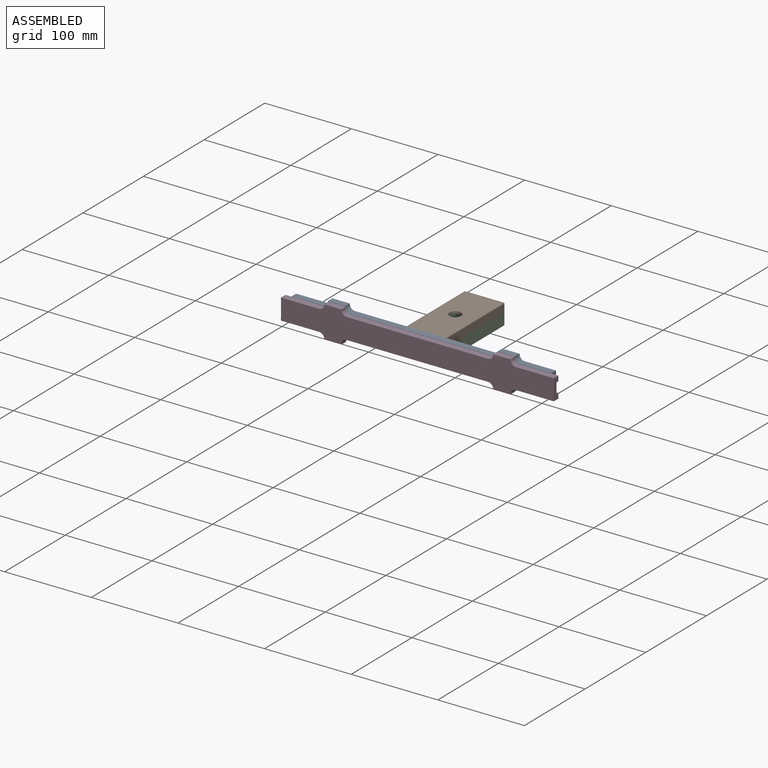
[diagram: assembled view]
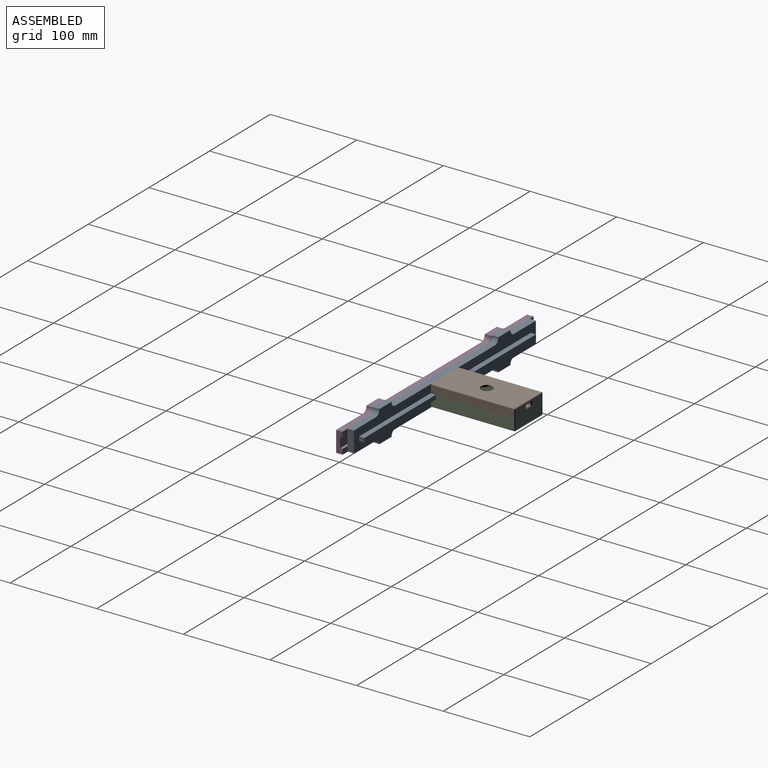
[diagram: assembled view, second angle]
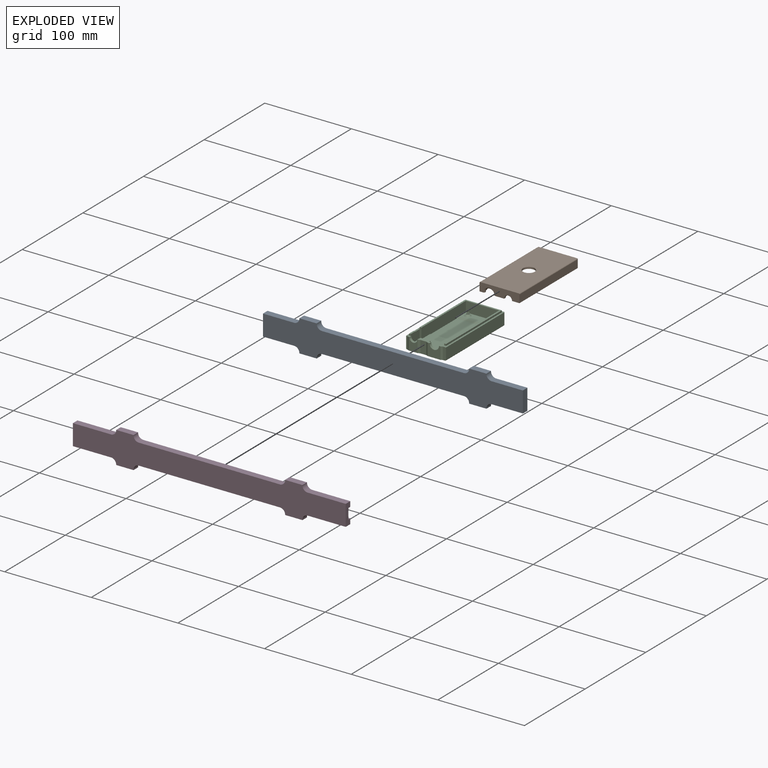
[diagram: exploded view]
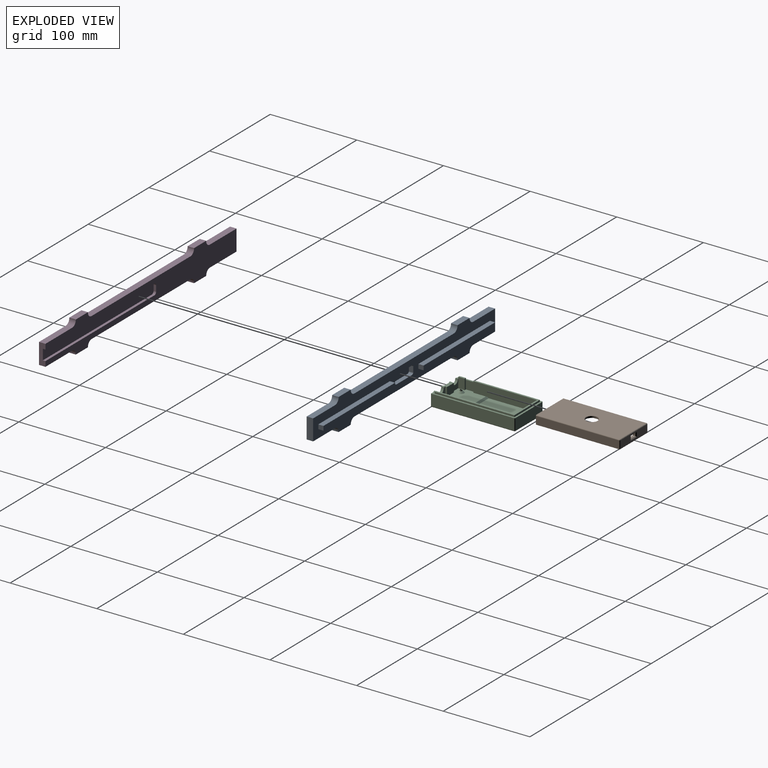
[diagram: exploded view, second angle]
ASSEMBLY  parts=4 mates=3
PART A: 49 faces, bbox 300x36.6x13.5 mm
  f0: plane 300x36.6mm, normal (0,0,1), area 6289.9mm2, adj f1,f2,f3,f4,f5,f6,f7,f8
  f1: plane 20x7.5mm, normal (0,1,0), area 150mm2, adj f0,f2,f28,f29
  f2: plane 7.5x0.3mm, normal (-1,0,0), area 2.3mm2, adj f0,f1,f3,f29
  f3: cylinder r=6mm len=7.5mm, axis (0,0,-1), area 70.7mm2, adj f0,f2,f4,f29
  f4: plane 36x7.5mm, normal (0,1,0), area 270mm2, adj f0,f3,f5,f29
  f5: plane 24x7.5mm, normal (-1,0,0), area 180mm2, adj f0,f4,f6,f29
  f6: plane 36x7.5mm, normal (0,-1,0), area 270mm2, adj f0,f5,f7,f29
  f7: cylinder r=6mm len=7.5mm, axis (0,0,-1), area 70.7mm2, adj f0,f6,f8,f29
  f8: plane 7.5x0.3mm, normal (-1,0,0), area 2.3mm2, adj f0,f7,f9,f29
  f9: plane 20x7.5mm, normal (0,-1,0), area 150mm2, adj f0,f8,f10,f29
  f10: plane 7.5x0.3mm, normal (1,0,0), area 2.3mm2, adj f0,f9,f11,f29
  f11: cylinder r=6mm len=7.5mm, axis (0,0,-1), area 70.7mm2, adj f0,f10,f12,f29
  f12: plane 164x7.5mm, normal (0,-1,0), area 1230mm2, adj f0,f11,f13,f29
  f13: cylinder r=6mm len=7.5mm, axis (0,0,-1), area 70.7mm2, adj f0,f12,f14,f29
  f14: plane 7.5x0.3mm, normal (-1,0,0), area 2.3mm2, adj f0,f13,f15,f29
  f15: plane 20x7.5mm, normal (0,-1,0), area 150mm2, adj f0,f14,f16,f29
  f16: plane 7.5x0.3mm, normal (1,0,0), area 2.3mm2, adj f0,f15,f17,f29
  f17: cylinder r=6mm len=7.5mm, axis (0,0,-1), area 70.7mm2, adj f0,f16,f18,f29
  f18: plane 36x7.5mm, normal (0,-1,0), area 270mm2, adj f0,f17,f19,f29
  f19: plane 24x7.5mm, normal (1,0,0), area 180mm2, adj f0,f18,f20,f29
  f20: plane 36x7.5mm, normal (0,1,0), area 270mm2, adj f0,f19,f21,f29
  f21: cylinder r=6mm len=7.5mm, axis (0,0,-1), area 70.7mm2, adj f0,f20,f22,f29
  f22: plane 7.5x0.3mm, normal (1,0,0), area 2.3mm2, adj f0,f21,f23,f29
  f23: plane 20x7.5mm, normal (0,1,0), area 150mm2, adj f0,f22,f24,f29
  f24: plane 7.5x0.3mm, normal (-1,0,0), area 2.3mm2, adj f0,f23,f25,f29
  f25: cylinder r=6mm len=7.5mm, axis (0,0,-1), area 70.7mm2, adj f0,f24,f26,f29
  f26: plane 164x7.5mm, normal (0,1,0), area 1230mm2, adj f0,f25,f27,f29
  f27: cylinder r=6mm len=7.5mm, axis (0,0,-1), area 70.7mm2, adj f0,f26,f28,f29
  f28: plane 7.5x0.3mm, normal (1,0,0), area 2.3mm2, adj f0,f1,f27,f29
  f29: plane 300x36.6mm, normal (0,0,-1), area 7765.8mm2, adj f1,f2,f3,f4,f5,f6,f7,f8
  f30: plane 118x6mm, normal (0,1,0), area 708mm2, adj f0,f31,f33,f34
  f31: plane 6x5mm, normal (-1,0,0), area 30mm2, adj f0,f30,f32,f34
  f32: plane 118x6mm, normal (0,-1,0), area 708mm2, adj f0,f31,f33,f34
  f33: plane 6x5mm, normal (1,0,0), area 30mm2, adj f0,f30,f32,f34
  f34: plane 118x5mm, normal (0,0,1), area 590mm2, adj f30,f31,f32,f33
  f35: plane 118x6mm, normal (0,1,0), area 708mm2, adj f0,f36,f38,f39
  f36: plane 6x5mm, normal (-1,0,0), area 30mm2, adj f0,f35,f37,f39
  f37: plane 118x6mm, normal (0,-1,0), area 708mm2, adj f0,f36,f38,f39
  f38: plane 6x5mm, normal (1,0,0), area 30mm2, adj f0,f35,f37,f39
  f39: plane 118x5mm, normal (0,0,1), area 590mm2, adj f35,f36,f37,f38
  f40: cylinder r=3mm len=5mm, axis (0,0,1), area 17.7mm2, adj f0,f41,f47,f48
  f41: plane 24x5mm, normal (0,-1,0), area 120mm2, adj f0,f40,f42,f48
  f42: cylinder r=3mm len=5mm, axis (0,0,1), area 17.7mm2, adj f0,f41,f43,f48
  f43: plane 7.1x5mm, normal (1,0,0), area 35.5mm2, adj f0,f42,f44,f48
  f44: cylinder r=3mm len=5mm, axis (0,0,1), area 17.7mm2, adj f0,f43,f45,f48
  f45: plane 24x5mm, normal (0,1,0), area 120mm2, adj f0,f44,f46,f48
  f46: cylinder r=3mm len=5mm, axis (0,0,1), area 17.7mm2, adj f0,f45,f47,f48
  f47: plane 7.1x5mm, normal (-1,0,0), area 35.5mm2, adj f0,f40,f46,f48
  f48: plane 30x10.06mm, normal (0,0,1), area 295.9mm2, adj f40,f41,f42,f43,f44,f45,f46,f47
PART B: 56 faces, bbox 46.1x96.9x10 mm
  f0: plane 6.47x2mm, normal (0,1,0), area 12.3mm2, adj f5,f14,f16,f43
  f1: plane 12x2.45mm, normal (0,0,-1), area 28.9mm2, adj f3,f10,f41,f43,f48
  f2: plane 12.85x1.55mm, normal (0,0,-1), area 19.9mm2, adj f3,f7,f41,f43
  f3: plane 12.85x2mm, normal (0,1,0), area 24.6mm2, adj f1,f2,f41,f43
  f4: plane 88.9x38.1mm, normal (0,0,-1), area 3126.7mm2, adj f6,f7,f8,f9,f19,f23,f28,f32
  f5: plane 96.9x46.08mm, normal (0,0,-1), area 614.2mm2, adj f0,f10,f11,f12,f15,f16,f17,f18
  f6: plane 88.9x6mm, normal (-1,0,0), area 533.4mm2, adj f4,f7,f9,f14
  f7: plane 38.1x6mm, normal (0,1,0), area 188.2mm2, adj f2,f4,f6,f8,f14,f41,f43
  f8: plane 88.9x6mm, normal (1,0,0), area 533.4mm2, adj f4,f7,f9,f14
  f9: plane 38.1x6mm, normal (0,-1,0), area 203.5mm2, adj f4,f6,f8,f14,f37,f38,f39,f40
  f10: plane 46.08x10mm, normal (0,-1,0), area 362.2mm2, adj f1,f5,f12,f13,f27,f43,f48,f49
  f11: plane 44.08x9mm, normal (0,1,0), area 345.3mm2, adj f5,f44,f45,f46,f47,f50,f53,f55
  f12: plane 95.9x9mm, normal (-1,0,0), area 863.1mm2, adj f5,f10,f49,f50
  f13: plane 95.9x44.08mm, normal (0,0,1), area 4080.4mm2, adj f10,f36,f49,f52,f53
  f14: plane 92x41mm, normal (0,0,-1), area 336.6mm2, adj f0,f6,f7,f8,f9,f15,f16,f17
  f15: plane 41x2mm, normal (0,-1,0), area 82mm2, adj f5,f14,f16,f17
  f16: plane 92x2mm, normal (-1,0,0), area 184mm2, adj f0,f5,f14,f15
  f17: plane 92x2mm, normal (1,0,0), area 184mm2, adj f5,f14,f15,f18
  f18: plane 3.38x2mm, normal (0,1,0), area 6.2mm2, adj f5,f14,f17,f41
  f19: cylinder r=3mm len=6mm, axis (0,0,1), area 75.4mm2, adj f4,f21
  f20: cylinder r=1mm len=4mm, axis (0,0,1), area 25.1mm2, adj f21,f22
  f21: plane 6x6mm, normal (0,0,-1), area 25.1mm2, adj f19,f20
  f22: plane 2x2mm, normal (0,0,-1), area 3.1mm2, adj f20
  f23: cylinder r=3mm len=6mm, axis (0,0,1), area 75.4mm2, adj f4,f24
  f24: plane 6x6mm, normal (0,0,-1), area 25.1mm2, adj f23,f25
  f25: cylinder r=1mm len=4mm, axis (0,0,1), area 25.1mm2, adj f24,f26
  f26: plane 2x2mm, normal (0,0,-1), area 3.1mm2, adj f25
  f27: plane 95.9x9mm, normal (1,0,0), area 863.1mm2, adj f5,f10,f52,f55
  f28: cylinder r=3mm len=6mm, axis (0,0,1), area 75.4mm2, adj f4,f29
  f29: plane 6x6mm, normal (0,0,-1), area 25.1mm2, adj f28,f30
  f30: cylinder r=1mm len=4mm, axis (0,0,1), area 25.1mm2, adj f29,f31
  f31: plane 2x2mm, normal (0,0,-1), area 3.1mm2, adj f30
  f32: cylinder r=3mm len=6mm, axis (0,0,1), area 72.4mm2, adj f4,f33,f42
  f33: plane 6x3.94mm, normal (0,0,-1), area 16.6mm2, adj f32,f34,f42
  f34: cylinder r=1mm len=4mm, axis (0,0,1), area 25.1mm2, adj f33,f35,f42
  f35: plane 2x2mm, normal (0,0,-1), area 3.1mm2, adj f34
  f36: cylinder r=6.85mm len=13.69mm, axis (0,0,-1), area 86mm2, adj f4,f13
  f37: plane 3.14x3mm, normal (1,0,0), area 9.4mm2, adj f9,f38,f40,f44
  f38: plane 8x3mm, normal (0,0,-1), area 24mm2, adj f9,f37,f39,f46
  f39: plane 3.14x3mm, normal (-1,0,0), area 9.4mm2, adj f9,f38,f40,f47
  f40: plane 8x3mm, normal (0,0,1), area 24mm2, adj f9,f37,f39,f45
  f41: cylinder r=5.5mm len=11mm, axis (0,-1,0), area 45.5mm2, adj f1,f2,f3,f5,f7,f14,f18,f48
  f42: cylinder r=4.5mm len=5.7mm, axis (0,-1,0), area 9mm2, adj f32,f33,f34
  f43: cylinder r=4.5mm len=9mm, axis (0,-1,0), area 50.1mm2, adj f0,f1,f2,f3,f5,f7,f10,f14
  f44: plane 5.14x1mm, normal (0.71,0.71,0), area 5.9mm2, adj f11,f37,f45,f46
  f45: plane 10x1mm, normal (0,0.71,0.71), area 12.7mm2, adj f11,f40,f44,f47
  f46: plane 10x1mm, normal (0,0.71,-0.71), area 12.7mm2, adj f11,f38,f44,f47
  f47: plane 5.14x1mm, normal (-0.71,0.71,0), area 5.9mm2, adj f11,f39,f45,f46
  f48: cone r=5.5mm half-angle=45deg, axis (0,-1,0), area 26.7mm2, adj f1,f5,f10,f41
  f49: cylinder r=1mm len=95.9mm, axis (0,1,0), area 150.6mm2, adj f10,f12,f13,f51
  f50: cylinder r=1mm len=9mm, axis (0,0,1), area 14.1mm2, adj f5,f11,f12,f51
  f51: sphere r=1mm, area 1.6mm2, adj f49,f50,f53
  f52: cylinder r=1mm len=95.9mm, axis (0,1,0), area 150.6mm2, adj f10,f13,f27,f54
  f53: cylinder r=1mm len=44.08mm, axis (1,0,0), area 69.2mm2, adj f11,f13,f51,f54
  f54: sphere r=1mm, area 1.6mm2, adj f52,f53,f55
  f55: cylinder r=1mm len=9mm, axis (0,0,1), area 14.1mm2, adj f5,f11,f27,f54
PART C: 75 faces, bbox 46.1x97.9x16 mm
  f0: plane 97.9x46.1mm, normal (0,0,1), area 496.9mm2, adj f1,f6,f7,f8,f9,f13,f16,f20
  f1: plane 14x10mm, normal (0,-1,0), area 108.2mm2, adj f0,f4,f5,f27,f28,f57
  f2: plane 38.1x10.94mm, normal (0,0,1), area 339.7mm2, adj f6,f18,f30,f59,f63,f65
  f3: plane 40.1x31.96mm, normal (0,0,1), area 1134.7mm2, adj f6,f7,f8,f9,f10,f11,f12,f13
  f4: plane 96.9x44.1mm, normal (0,0,-1), area 4145.6mm2, adj f1,f19,f20,f21,f22,f26,f27,f28
  f5: plane 14.15x5mm, normal (0,0,1), area 56.1mm2, adj f1,f9,f10,f11,f12,f13,f19,f20
  f6: plane 90x12mm, normal (-1,0,0), area 1069mm2, adj f0,f2,f3,f7,f30,f31,f35,f55
  f7: plane 10x1.67mm, normal (0,1,0), area 16.7mm2, adj f0,f3,f6,f8
  f8: plane 10x2mm, normal (-1,0,0), area 20mm2, adj f0,f3,f7,f9
  f9: plane 15x10mm, normal (0,1,0), area 102.5mm2, adj f0,f3,f5,f8,f10,f56
  f10: plane 10x2mm, normal (1,0,0), area 20mm2, adj f3,f5,f9,f11
  f11: plane 11.42x10mm, normal (0,1,0), area 114.2mm2, adj f3,f5,f10,f12
  f12: plane 10x2mm, normal (-1,0,0), area 20mm2, adj f3,f5,f11,f13
  f13: plane 10x10mm, normal (0,1,0), area 68.2mm2, adj f0,f3,f5,f12,f14,f57
  f14: plane 12x7.45mm, normal (1,0,0), area 89.4mm2, adj f3,f13,f15,f36,f38
  f15: plane 12x2mm, normal (0,1,0), area 24mm2, adj f3,f14,f16,f37,f38
  f16: plane 10x10mm, normal (1,0,0), area 100mm2, adj f0,f3,f15,f17
  f17: plane 12x2mm, normal (0,-1,0), area 24mm2, adj f3,f16,f18,f34,f35
  f18: plane 73.45x12mm, normal (1,0,0), area 881.4mm2, adj f2,f3,f17,f30,f35,f51
  f19: plane 14x2mm, normal (-0.45,-0.89,0), area 31.3mm2, adj f4,f5,f20,f29
  f20: plane 15x14mm, normal (0,-1,0), area 162.5mm2, adj f0,f4,f5,f19,f21,f56
  f21: plane 14x2mm, normal (0.45,-0.89,0), area 31.3mm2, adj f0,f4,f20,f22
  f22: plane 14x3.67mm, normal (0,-1,0), area 51.2mm2, adj f0,f4,f21,f23,f74
  f23: plane 95.9x13mm, normal (1,0,0), area 1246.7mm2, adj f0,f22,f71,f74
  f24: plane 44.1x13mm, normal (0,1,0), area 573.3mm2, adj f0,f68,f71,f72
  f25: plane 95.9x13mm, normal (-1,0,0), area 1246.7mm2, adj f0,f26,f68,f69
  f26: plane 14x1.54mm, normal (0,-1,0), area 21.3mm2, adj f0,f4,f25,f27,f69
  f27: plane 14x2.47mm, normal (-0.38,-0.93,0), area 37.3mm2, adj f0,f1,f4,f26
  f28: plane 14x2.47mm, normal (0.38,-0.93,0), area 37.3mm2, adj f1,f4,f5,f29
  f29: plane 14x6.95mm, normal (0,-1,0), area 97.3mm2, adj f4,f5,f19,f28
  f30: plane 38.1x12mm, normal (0,-1,0), area 457.2mm2, adj f2,f6,f18,f35
  f31: plane 2x2mm, normal (0,-1,0), area 4mm2, adj f0,f6,f32,f35
  f32: plane 92x2mm, normal (1,0,0), area 184mm2, adj f0,f31,f33,f35
  f33: plane 42.1x2mm, normal (0,1,0), area 84.2mm2, adj f0,f32,f34,f35
  f34: plane 75.45x2mm, normal (-1,0,0), area 150.9mm2, adj f0,f17,f33,f35
  f35: plane 92x42.1mm, normal (0,0,1), area 411.1mm2, adj f6,f17,f18,f30,f31,f32,f33,f34
  f36: plane 2.01x2mm, normal (0,-1,0), area 4mm2, adj f0,f14,f37,f38
  f37: plane 7.45x2mm, normal (-1,0,0), area 14.9mm2, adj f0,f15,f36,f38
  f38: plane 7.45x2.01mm, normal (0,0,1), area 14.9mm2, adj f14,f15,f36,f37
  f39: cylinder r=1mm len=5mm, axis (0,0,1), area 31.4mm2, adj f44,f66
  f40: cylinder r=1mm len=5mm, axis (0,0,1), area 31.4mm2, adj f46,f67
  f41: cylinder r=1mm len=5mm, axis (0,0,1), area 31.4mm2, adj f48,f60
  f42: cylinder r=1mm len=5mm, axis (0,0,1), area 31.4mm2, adj f50,f61
  f43: cylinder r=1.5mm len=3mm, axis (0,0,-1), area 9.4mm2, adj f44,f65
  f44: plane 3x3mm, normal (0,0,1), area 3.9mm2, adj f39,f43
  f45: cylinder r=1.5mm len=3mm, axis (0,0,-1), area 9.4mm2, adj f46,f64
  f46: plane 3x3mm, normal (0,0,1), area 3.9mm2, adj f40,f45
  f47: cylinder r=1.5mm len=3mm, axis (0,0,-1), area 9.4mm2, adj f48,f63
  f48: plane 3x3mm, normal (0,0,1), area 3.9mm2, adj f41,f47
  f49: cylinder r=1.5mm len=3mm, axis (0,0,-1), area 9.4mm2, adj f50,f62
  f50: plane 3x3mm, normal (0,0,1), area 3.9mm2, adj f42,f49
  f51: plane 48x1.7mm, normal (0,0,-1), area 81.6mm2, adj f18,f53,f58,f59
  f52: plane 48x2mm, normal (-1,0,0), area 92mm2, adj f54,f55,f58,f59
  f53: plane 48x2mm, normal (1,0,0), area 92mm2, adj f51,f54,f58,f59
  f54: plane 44x41.5mm, normal (0,0,1), area 1826mm2, adj f52,f53,f58,f59
  f55: plane 48x1.7mm, normal (0,0,-1), area 81.6mm2, adj f6,f52,f58,f59
  f56: cylinder r=5.5mm len=11mm, axis (0,-1,0), area 51.8mm2, adj f0,f5,f9,f20
  f57: cylinder r=4.5mm len=9mm, axis (0,-1,0), area 42.4mm2, adj f0,f1,f5,f13
  f58: plane 41.5x2mm, normal (0,0.71,0.71), area 117.4mm2, adj f3,f51,f52,f53,f54,f55
  f59: plane 41.5x2mm, normal (0,-0.71,0.71), area 117.4mm2, adj f2,f51,f52,f53,f54,f55
  f60: cone r=3mm half-angle=45deg, axis (0,0,-1), area 35.5mm2, adj f4,f41
  f61: cone r=3mm half-angle=45deg, axis (0,0,-1), area 35.5mm2, adj f4,f42
  f62: cone r=3.5mm half-angle=45deg, axis (0,0,-1), area 44.4mm2, adj f3,f49
  f63: cone r=3.5mm half-angle=45deg, axis (0,0,-1), area 44.4mm2, adj f2,f47
  f64: cone r=1.5mm half-angle=45deg, axis (0,0,-1), area 44.4mm2, adj f3,f45
  f65: cone r=1.5mm half-angle=45deg, axis (0,0,-1), area 44.4mm2, adj f2,f43
  f66: cone r=1mm half-angle=45deg, axis (0,0,-1), area 35.5mm2, adj f4,f39
  f67: cone r=1mm half-angle=45deg, axis (0,0,-1), area 35.5mm2, adj f4,f40
  f68: cylinder r=1mm len=13mm, axis (0,0,-1), area 20.4mm2, adj f0,f24,f25,f70
  f69: cylinder r=1mm len=95.9mm, axis (0,-1,0), area 150.6mm2, adj f4,f25,f26,f70
  f70: sphere r=1mm, area 1.6mm2, adj f68,f69,f72
  f71: cylinder r=1mm len=13mm, axis (0,0,1), area 20.4mm2, adj f0,f23,f24,f73
  f72: cylinder r=1mm len=44.1mm, axis (-1,0,0), area 69.3mm2, adj f4,f24,f70,f73
  f73: sphere r=1mm, area 1.6mm2, adj f71,f72,f74
  f74: cylinder r=1mm len=95.9mm, axis (0,1,0), area 150.6mm2, adj f4,f22,f23,f73
PART D: 38 faces, bbox 315x36.6x7.5 mm
  f0: plane 12x7.5mm, normal (1,0,0), area 72mm2, adj f1,f21,f22,f31,f32,f37
  f1: plane 315x36.6mm, normal (0,0,1), area 5938.8mm2, adj f0,f2,f3,f4,f5,f6,f7,f8
  f2: plane 20x7.5mm, normal (0,1,0), area 150mm2, adj f1,f3,f30,f31
  f3: plane 7.5x0.3mm, normal (-1,0,0), area 2.3mm2, adj f1,f2,f4,f31
  f4: cylinder r=6mm len=7.5mm, axis (0,0,-1), area 70.7mm2, adj f1,f3,f5,f31
  f5: plane 44x7.5mm, normal (0,1,0), area 330mm2, adj f1,f4,f6,f31
  f6: plane 12x7.5mm, normal (-1,0,0), area 90mm2, adj f1,f5,f7,f31
  f7: plane 12x7.5mm, normal (-1,0,0), area 90mm2, adj f1,f6,f8,f31
  f8: plane 44x7.5mm, normal (0,-1,0), area 330mm2, adj f1,f7,f9,f31
  f9: cylinder r=6mm len=7.5mm, axis (0,0,-1), area 70.7mm2, adj f1,f8,f10,f31
  f10: plane 7.5x0.3mm, normal (-1,0,0), area 2.3mm2, adj f1,f9,f11,f31
  f11: plane 20x7.5mm, normal (0,-1,0), area 150mm2, adj f1,f10,f12,f31
  f12: plane 7.5x0.3mm, normal (1,0,0), area 2.3mm2, adj f1,f11,f13,f31
  f13: cylinder r=6mm len=7.5mm, axis (0,0,-1), area 70.7mm2, adj f1,f12,f14,f31
  f14: plane 163x7.5mm, normal (0,-1,0), area 1222.5mm2, adj f1,f13,f15,f31
  f15: cylinder r=6mm len=7.5mm, axis (0,0,-1), area 70.7mm2, adj f1,f14,f16,f31
  f16: plane 7.5x0.3mm, normal (-1,0,0), area 2.3mm2, adj f1,f15,f17,f31
  f17: plane 20x7.5mm, normal (0,-1,0), area 150mm2, adj f1,f16,f18,f31
  f18: plane 7.5x0.3mm, normal (1,0,0), area 2.3mm2, adj f1,f17,f19,f31
  f19: cylinder r=6mm len=7.5mm, axis (0,0,-1), area 70.7mm2, adj f1,f18,f20,f31
  f20: plane 44x7.5mm, normal (0,-1,0), area 330mm2, adj f1,f19,f21,f31
  f21: plane 12x7.5mm, normal (1,0,0), area 72mm2, adj f0,f1,f20,f31,f36,f37
  f22: plane 44x7.5mm, normal (0,1,0), area 330mm2, adj f0,f1,f23,f31
  f23: cylinder r=6mm len=7.5mm, axis (0,0,-1), area 70.7mm2, adj f1,f22,f24,f31
  f24: plane 7.5x0.3mm, normal (1,0,0), area 2.3mm2, adj f1,f23,f25,f31
  f25: plane 20x7.5mm, normal (0,1,0), area 150mm2, adj f1,f24,f26,f31
  f26: plane 7.5x0.3mm, normal (-1,0,0), area 2.3mm2, adj f1,f25,f27,f31
  f27: cylinder r=6mm len=7.5mm, axis (0,0,-1), area 70.7mm2, adj f1,f26,f28,f31
  f28: plane 163x7.5mm, normal (0,1,0), area 1222.5mm2, adj f1,f27,f29,f31
  f29: cylinder r=6mm len=7.5mm, axis (0,0,-1), area 70.7mm2, adj f1,f28,f30,f31
  f30: plane 7.5x0.3mm, normal (1,0,0), area 2.3mm2, adj f1,f2,f29,f31
  f31: plane 315x36.6mm, normal (0,0,-1), area 8124.4mm2, adj f0,f2,f3,f4,f5,f6,f7,f8
  f32: plane 179.47x3mm, normal (0,-1,0), area 538.4mm2, adj f0,f1,f33,f37
  f33: cylinder r=3mm len=3mm, axis (0,0,1), area 14.1mm2, adj f1,f32,f34,f37
  f34: plane 6x3mm, normal (1,0,0), area 18mm2, adj f1,f33,f35,f37
  f35: cylinder r=3mm len=3mm, axis (0,0,1), area 14.1mm2, adj f1,f34,f36,f37
  f36: plane 179.47x3mm, normal (0,1,0), area 538.4mm2, adj f1,f21,f35,f37
  f37: plane 182.47x12mm, normal (0,0,1), area 2185.6mm2, adj f0,f21,f32,f33,f34,f35,f36
PLACE A rot(axis=(-1,0,0),90deg) t=(-0.01,-55.62,17)mm
PLACE B t=(-0.01,0.33,19)mm
PLACE C t=(0,0.33,19)mm
PLACE D rot(axis=(-1,0,0),90deg) t=(0.49,-63.12,16.7)mm
MATE fastened B.f10 <-> A.f0  axis (0,-1,0) through (-0.01,-48.12,29)mm
MATE fastened A.f29 <-> D.f1  axis (0,-1,0) through (107.99,-55.62,35)mm
MATE fastened B.f5 <-> C.f0  axis (0,0,-1) through (-23.05,47.78,19)mm
